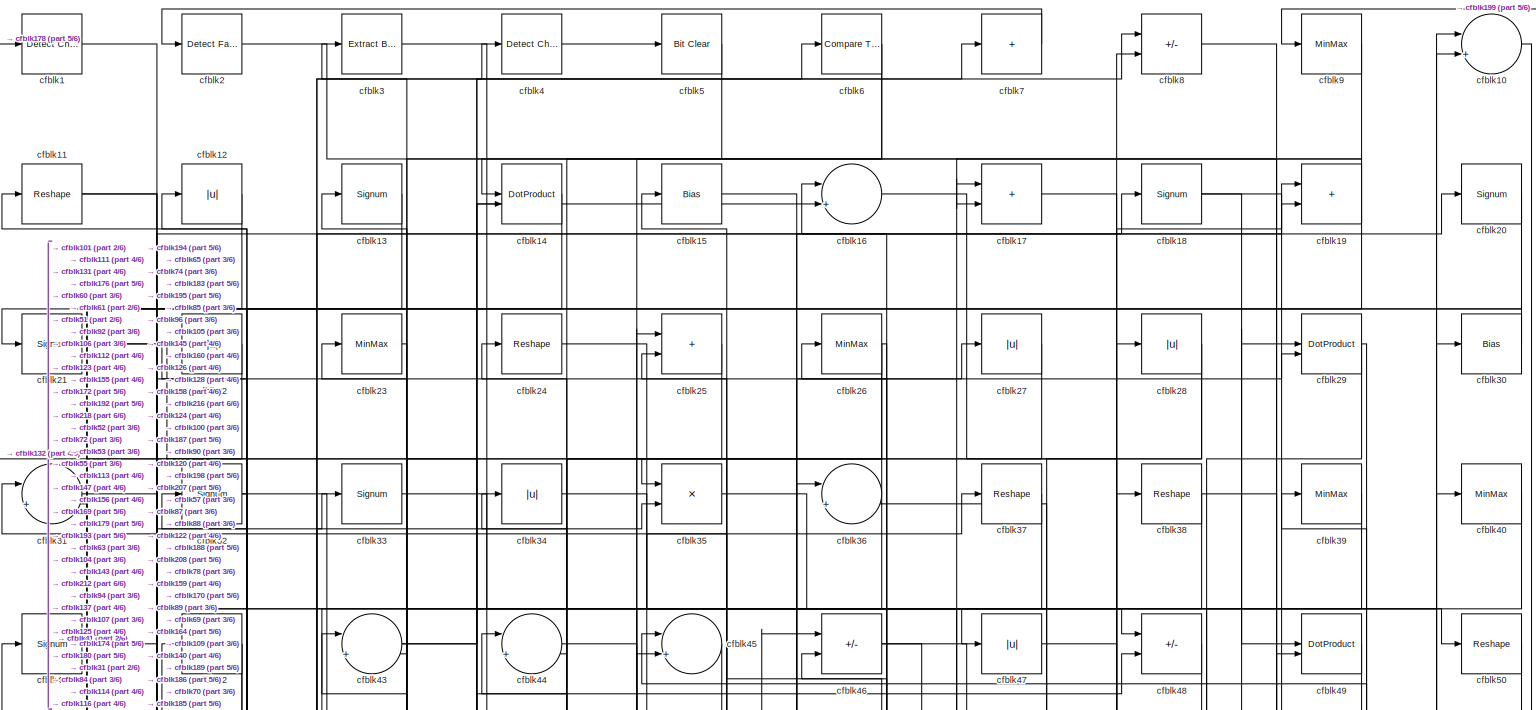
[diagram: root canvas - part 1/6, full width, top band]
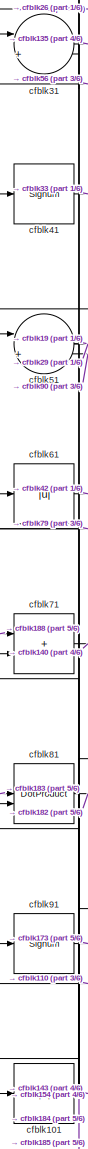
[diagram: root canvas - part 2/6, top left region]
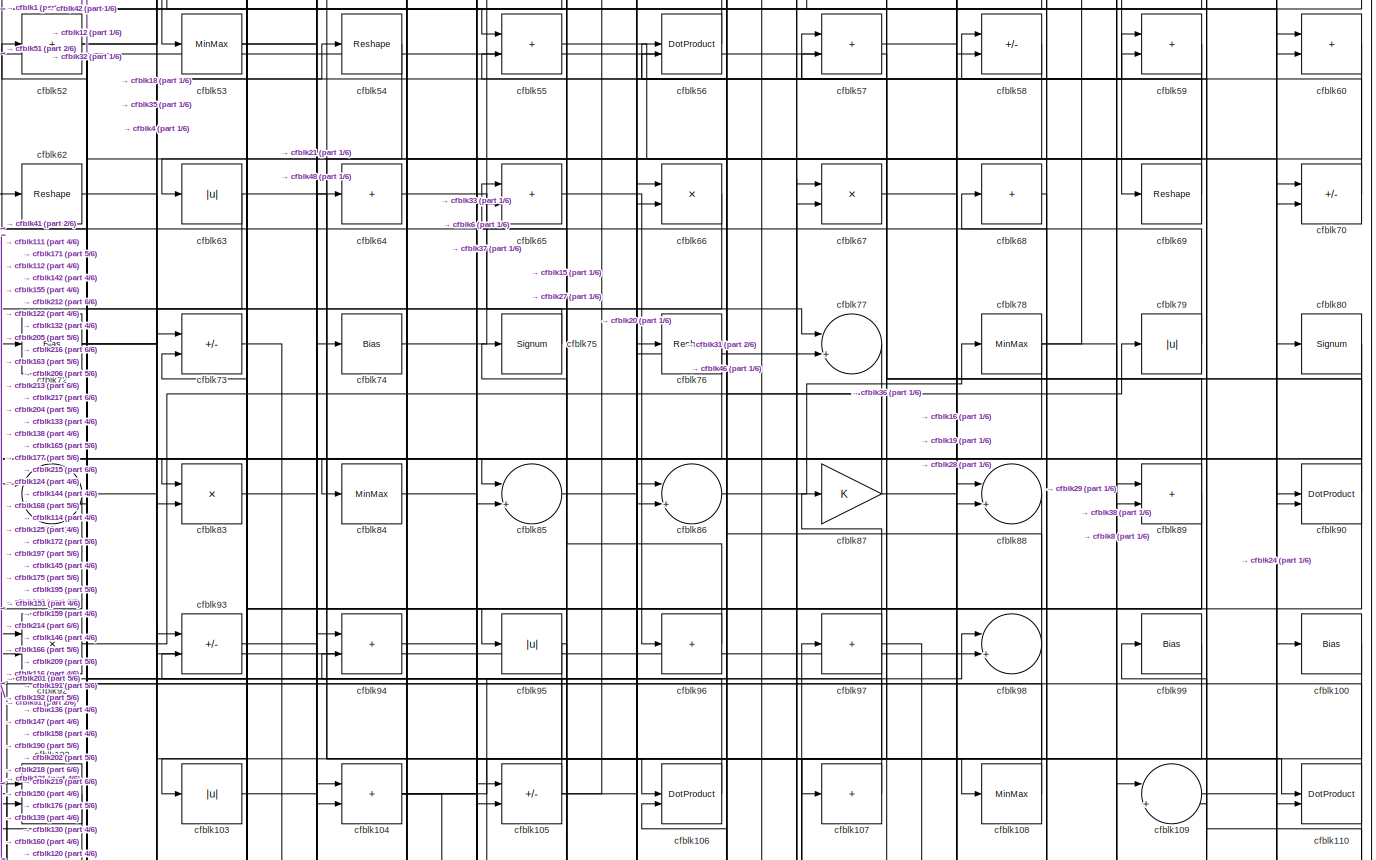
[diagram: root canvas - part 3/6, full width, middle band]
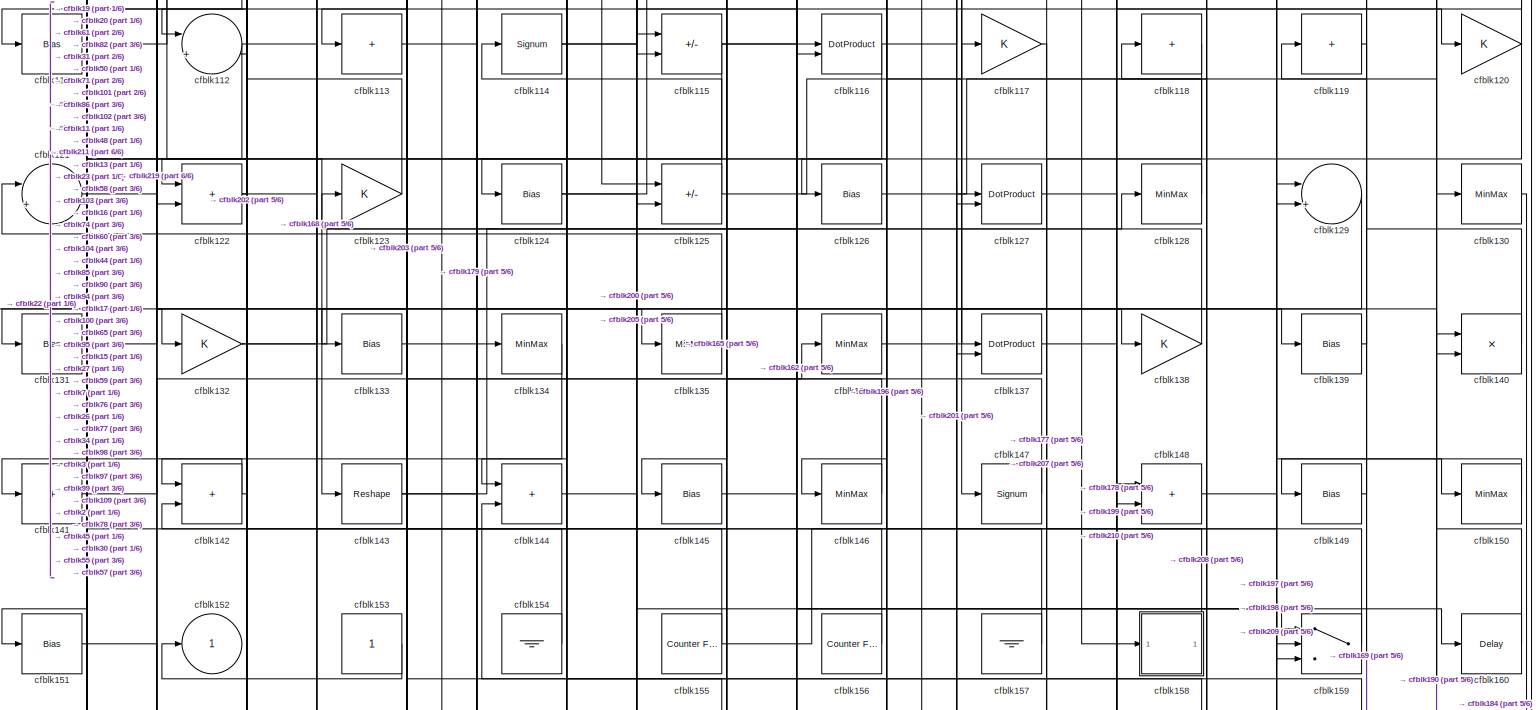
[diagram: root canvas - part 4/6, full width, middle band]
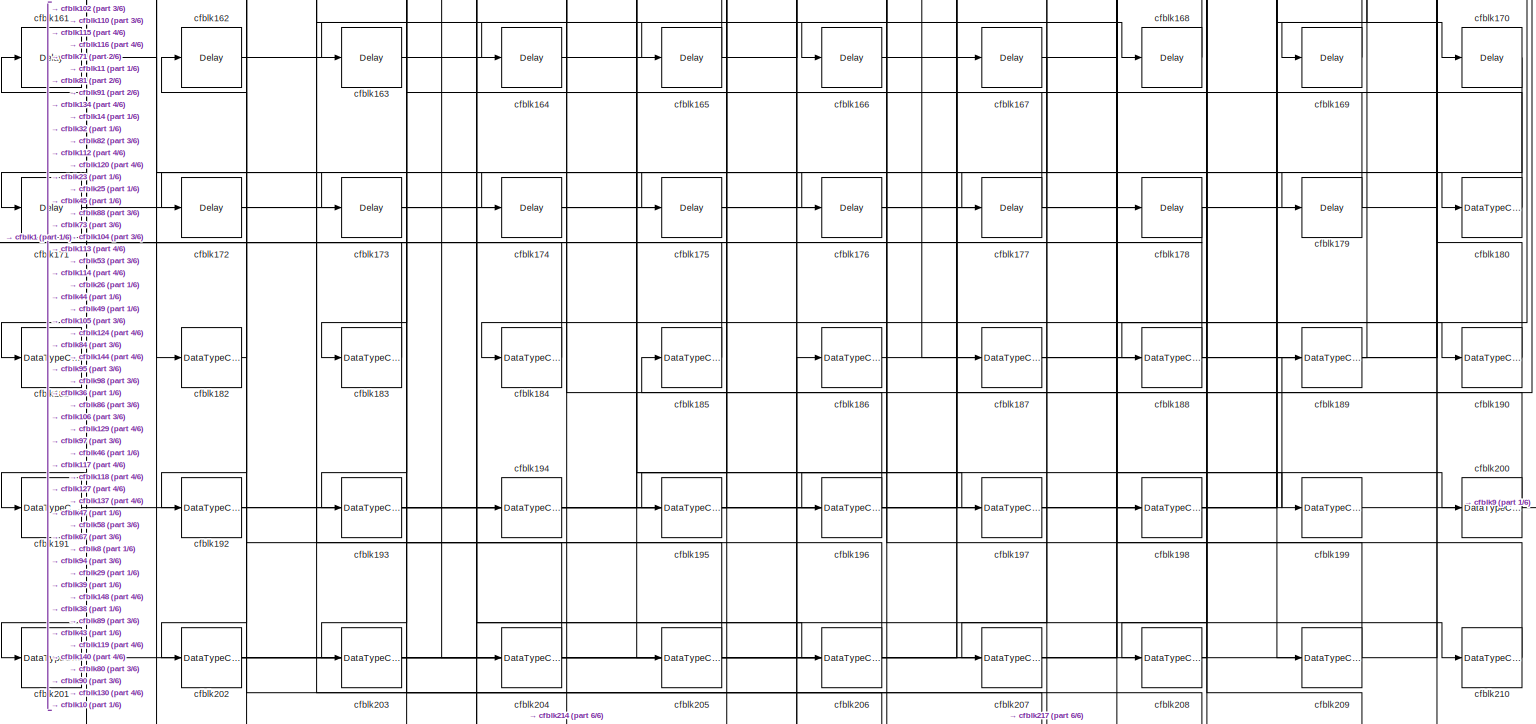
[diagram: root canvas - part 5/6, full width, bottom band]
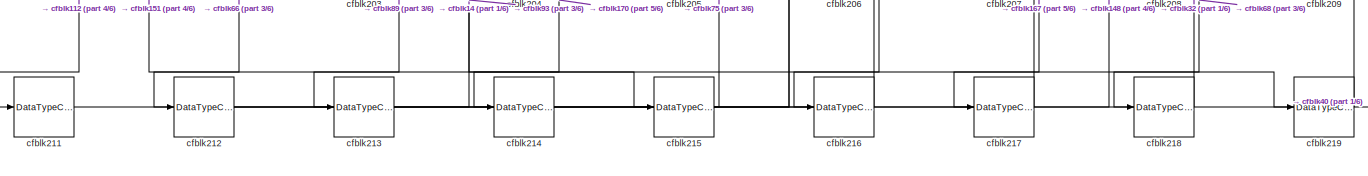
[diagram: root canvas - part 6/6, full width, bottom band]
MODEL slx_e019bd5b1b93
KIND model
CONFIG AbsTol = auto
CONFIG EnableMultiTasking = off
CONFIG FixedStep = auto
CONFIG MaxStep = auto
CONFIG MinStep = auto
CONFIG RelTol = 1e-3
CONFIG SampleTimeConstraint = Unconstrained
CONFIG SolverName = VariableStepAuto
CONFIG StartTime = 0.0
CONFIG StopTime = 10.0
BLOCK [Reference] cfblk1  REF=simulink/Logic and Bit
Operations/Detect
Change
  LibrarySourceBlock = hdlsllib/Logic and Bit\nOperations/Detect\nChange
  SourceBlock = simulink/Logic and Bit\nOperations/Detect\nChange
  SourceType = Detect Change
BLOCK [Sum] cfblk10
  Inputs = |++
BLOCK [Bias] cfblk100
  Bias = 0.0
  SaturateOnIntegerOverflow = off
BLOCK [Abs] cfblk101
  SaturateOnIntegerOverflow = off
BLOCK [Product] cfblk102
  Inputs = */
  RndMeth = Zero
  SaturateOnIntegerOverflow = on
BLOCK [Abs] cfblk103
  SaturateOnIntegerOverflow = off
BLOCK [Sum] cfblk104
  IconShape = rectangular
BLOCK [Sum] cfblk105
  IconShape = rectangular
  Inputs = +-
BLOCK [DotProduct] cfblk106
  OutDataTypeStr = Inherit: Inherit via internal rule
BLOCK [Sum] cfblk107
  IconShape = rectangular
  Inputs = +
BLOCK [MinMax] cfblk108
BLOCK [Sum] cfblk109
  Inputs = |++
BLOCK [Reshape] cfblk11
BLOCK [DotProduct] cfblk110
  OutDataTypeStr = Inherit: Inherit via internal rule
BLOCK [Bias] cfblk111
  Bias = 0.0
  SaturateOnIntegerOverflow = off
BLOCK [Sum] cfblk112
  Inputs = |++
BLOCK [Sum] cfblk113
  IconShape = rectangular
  Inputs = +
BLOCK [Signum] cfblk114
BLOCK [Sum] cfblk115
  IconShape = rectangular
  Inputs = +-
BLOCK [DotProduct] cfblk116
  OutDataTypeStr = Inherit: Inherit via internal rule
BLOCK [Gain] cfblk117
BLOCK [Sum] cfblk118
  IconShape = rectangular
  Inputs = +
BLOCK [Sum] cfblk119
  IconShape = rectangular
  Inputs = +
BLOCK [Abs] cfblk12
  SaturateOnIntegerOverflow = off
BLOCK [Gain] cfblk120
BLOCK [Sum] cfblk121
  Inputs = |++
BLOCK [Sum] cfblk122
  IconShape = rectangular
BLOCK [Gain] cfblk123
BLOCK [Bias] cfblk124
  Bias = 0.0
  SaturateOnIntegerOverflow = off
BLOCK [Sum] cfblk125
  IconShape = rectangular
  Inputs = +-
BLOCK [Bias] cfblk126
  Bias = 0.0
  SaturateOnIntegerOverflow = off
BLOCK [DotProduct] cfblk127
  OutDataTypeStr = Inherit: Inherit via internal rule
BLOCK [MinMax] cfblk128
BLOCK [Sum] cfblk129
  Inputs = |++
BLOCK [Signum] cfblk13
BLOCK [MinMax] cfblk130
BLOCK [Bias] cfblk131
  Bias = 0.0
  SaturateOnIntegerOverflow = off
BLOCK [Gain] cfblk132
BLOCK [Bias] cfblk133
  Bias = 0.0
  SaturateOnIntegerOverflow = off
BLOCK [MinMax] cfblk134
BLOCK [MinMax] cfblk135
BLOCK [MinMax] cfblk136
BLOCK [DotProduct] cfblk137
  OutDataTypeStr = Inherit: Inherit via internal rule
BLOCK [Gain] cfblk138
BLOCK [Bias] cfblk139
  Bias = 0.0
  SaturateOnIntegerOverflow = off
BLOCK [DotProduct] cfblk14
  OutDataTypeStr = Inherit: Inherit via internal rule
BLOCK [Product] cfblk140
  Inputs = */
  RndMeth = Zero
  SaturateOnIntegerOverflow = on
BLOCK [Sum] cfblk141
  IconShape = rectangular
  Inputs = +
BLOCK [Sum] cfblk142
  IconShape = rectangular
BLOCK [Reshape] cfblk143
BLOCK [Sum] cfblk144
  IconShape = rectangular
BLOCK [Bias] cfblk145
  Bias = 0.0
  SaturateOnIntegerOverflow = off
BLOCK [MinMax] cfblk146
BLOCK [Signum] cfblk147
BLOCK [Sum] cfblk148
  IconShape = rectangular
BLOCK [Bias] cfblk149
  Bias = 0.0
  SaturateOnIntegerOverflow = off
BLOCK [Bias] cfblk15
  Bias = 0.0
  SaturateOnIntegerOverflow = off
BLOCK [MinMax] cfblk150
BLOCK [Bias] cfblk151
  Bias = 0.0
  SaturateOnIntegerOverflow = off
BLOCK [Outport] cfblk152
  VectorParamsAs1DForOutWhenUnconnected = off
BLOCK [Constant] cfblk153
  SampleTime = -1
BLOCK [Ground] cfblk154
BLOCK [Reference] cfblk155  REF=hdlsllib/Sources/Counter
Free-Running
  SourceBlock = hdlsllib/Sources/Counter\nFree-Running
  SourceType = Counter Free-Running
BLOCK [Reference] cfblk156  REF=hdlsllib/Sources/Counter
Free-Running
  SourceBlock = hdlsllib/Sources/Counter\nFree-Running
  SourceType = Counter Free-Running
BLOCK [Ground] cfblk157
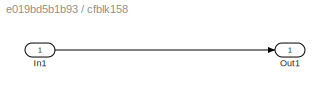
BLOCK [SubSystem] cfblk158
  LibrarySourceBlock = hdlsllib/Ports &\nSubsystems/Subsystem
BLOCK [Inport] cfblk158/In1
BLOCK [Outport] cfblk158/Out1
BLOCK [Switch] cfblk159
  InputSameDT = off
  SaturateOnIntegerOverflow = off
BLOCK [Sum] cfblk16
  Inputs = |++
BLOCK [Delay] cfblk160
  InputPortMap = u0
  SampleTime = 1
BLOCK [Delay] cfblk161
  InputPortMap = u0
  SampleTime = 1
BLOCK [Delay] cfblk162
  InputPortMap = u0
  SampleTime = 1
BLOCK [Delay] cfblk163
  InputPortMap = u0
  SampleTime = 1
BLOCK [Delay] cfblk164
  InputPortMap = u0
  SampleTime = 1
BLOCK [Delay] cfblk165
  InputPortMap = u0
  SampleTime = 1
BLOCK [Delay] cfblk166
  InputPortMap = u0
  SampleTime = 1
BLOCK [Delay] cfblk167
  InputPortMap = u0
  SampleTime = 1
BLOCK [Delay] cfblk168
  InputPortMap = u0
  SampleTime = 1
BLOCK [Delay] cfblk169
  InputPortMap = u0
  SampleTime = 1
BLOCK [Sum] cfblk17
  IconShape = rectangular
BLOCK [Delay] cfblk170
  InputPortMap = u0
  SampleTime = 1
BLOCK [Delay] cfblk171
  InputPortMap = u0
  SampleTime = 1
BLOCK [Delay] cfblk172
  InputPortMap = u0
  SampleTime = 1
BLOCK [Delay] cfblk173
  InputPortMap = u0
  SampleTime = 1
BLOCK [Delay] cfblk174
  InputPortMap = u0
  SampleTime = 1
BLOCK [Delay] cfblk175
  InputPortMap = u0
  SampleTime = 1
BLOCK [Delay] cfblk176
  InputPortMap = u0
  SampleTime = 1
BLOCK [Delay] cfblk177
  InputPortMap = u0
  SampleTime = 1
BLOCK [Delay] cfblk178
  InputPortMap = u0
  SampleTime = 1
BLOCK [Delay] cfblk179
  InputPortMap = u0
  SampleTime = 1
BLOCK [Signum] cfblk18
BLOCK [DataTypeConversion] cfblk180
  OutDataTypeStr = uint8
  RndMeth = Floor
  SaturateOnIntegerOverflow = off
BLOCK [DataTypeConversion] cfblk181
  OutDataTypeStr = uint8
  RndMeth = Floor
  SaturateOnIntegerOverflow = off
BLOCK [DataTypeConversion] cfblk182
  OutDataTypeStr = uint8
  RndMeth = Floor
  SaturateOnIntegerOverflow = off
BLOCK [DataTypeConversion] cfblk183
  OutDataTypeStr = uint8
  RndMeth = Floor
  SaturateOnIntegerOverflow = off
BLOCK [DataTypeConversion] cfblk184
  OutDataTypeStr = uint8
  RndMeth = Floor
  SaturateOnIntegerOverflow = off
BLOCK [DataTypeConversion] cfblk185
  OutDataTypeStr = uint8
  RndMeth = Floor
  SaturateOnIntegerOverflow = off
BLOCK [DataTypeConversion] cfblk186
  OutDataTypeStr = uint8
  RndMeth = Floor
  SaturateOnIntegerOverflow = off
BLOCK [DataTypeConversion] cfblk187
  OutDataTypeStr = uint8
  RndMeth = Floor
  SaturateOnIntegerOverflow = off
BLOCK [DataTypeConversion] cfblk188
  OutDataTypeStr = uint8
  RndMeth = Floor
  SaturateOnIntegerOverflow = off
BLOCK [DataTypeConversion] cfblk189
  OutDataTypeStr = uint8
  RndMeth = Floor
  SaturateOnIntegerOverflow = off
BLOCK [Sum] cfblk19
  IconShape = rectangular
BLOCK [DataTypeConversion] cfblk190
  OutDataTypeStr = uint8
  RndMeth = Floor
  SaturateOnIntegerOverflow = off
BLOCK [DataTypeConversion] cfblk191
  OutDataTypeStr = uint8
  RndMeth = Floor
  SaturateOnIntegerOverflow = off
BLOCK [DataTypeConversion] cfblk192
  OutDataTypeStr = uint8
  RndMeth = Floor
  SaturateOnIntegerOverflow = off
BLOCK [DataTypeConversion] cfblk193
  RndMeth = Floor
  SaturateOnIntegerOverflow = off
BLOCK [DataTypeConversion] cfblk194
  OutDataTypeStr = uint8
  RndMeth = Floor
  SaturateOnIntegerOverflow = off
BLOCK [DataTypeConversion] cfblk195
  OutDataTypeStr = uint8
  RndMeth = Floor
  SaturateOnIntegerOverflow = off
BLOCK [DataTypeConversion] cfblk196
  OutDataTypeStr = uint8
  RndMeth = Floor
  SaturateOnIntegerOverflow = off
BLOCK [DataTypeConversion] cfblk197
  OutDataTypeStr = uint8
  RndMeth = Floor
  SaturateOnIntegerOverflow = off
BLOCK [DataTypeConversion] cfblk198
  OutDataTypeStr = uint8
  RndMeth = Floor
  SaturateOnIntegerOverflow = off
BLOCK [DataTypeConversion] cfblk199
  OutDataTypeStr = uint8
  RndMeth = Floor
  SaturateOnIntegerOverflow = off
BLOCK [Reference] cfblk2  REF=hdlsllib/Logic and Bit
Operations/Detect Fall
Nonpositive
  SourceBlock = hdlsllib/Logic and Bit\nOperations/Detect Fall\nNonpositive
  SourceType = Detect Fall Nonpositive
BLOCK [Signum] cfblk20
BLOCK [DataTypeConversion] cfblk200
  OutDataTypeStr = uint8
  RndMeth = Floor
  SaturateOnIntegerOverflow = off
BLOCK [DataTypeConversion] cfblk201
  OutDataTypeStr = uint8
  RndMeth = Floor
  SaturateOnIntegerOverflow = off
BLOCK [DataTypeConversion] cfblk202
  RndMeth = Floor
  SaturateOnIntegerOverflow = off
BLOCK [DataTypeConversion] cfblk203
  OutDataTypeStr = uint8
  RndMeth = Floor
  SaturateOnIntegerOverflow = off
BLOCK [DataTypeConversion] cfblk204
  RndMeth = Floor
  SaturateOnIntegerOverflow = off
BLOCK [DataTypeConversion] cfblk205
  OutDataTypeStr = uint8
  RndMeth = Floor
  SaturateOnIntegerOverflow = off
BLOCK [DataTypeConversion] cfblk206
  OutDataTypeStr = uint8
  RndMeth = Floor
  SaturateOnIntegerOverflow = off
BLOCK [DataTypeConversion] cfblk207
  OutDataTypeStr = uint8
  RndMeth = Floor
  SaturateOnIntegerOverflow = off
BLOCK [DataTypeConversion] cfblk208
  OutDataTypeStr = uint8
  RndMeth = Floor
  SaturateOnIntegerOverflow = off
BLOCK [DataTypeConversion] cfblk209
  OutDataTypeStr = uint8
  RndMeth = Floor
  SaturateOnIntegerOverflow = off
BLOCK [Signum] cfblk21
BLOCK [DataTypeConversion] cfblk210
  OutDataTypeStr = uint8
  RndMeth = Floor
  SaturateOnIntegerOverflow = off
BLOCK [DataTypeConversion] cfblk211
  OutDataTypeStr = uint8
  RndMeth = Floor
  SaturateOnIntegerOverflow = off
BLOCK [DataTypeConversion] cfblk212
  RndMeth = Floor
  SaturateOnIntegerOverflow = off
BLOCK [DataTypeConversion] cfblk213
  OutDataTypeStr = uint8
  RndMeth = Floor
  SaturateOnIntegerOverflow = off
BLOCK [DataTypeConversion] cfblk214
  OutDataTypeStr = uint8
  RndMeth = Floor
  SaturateOnIntegerOverflow = off
BLOCK [DataTypeConversion] cfblk215
  OutDataTypeStr = uint8
  RndMeth = Floor
  SaturateOnIntegerOverflow = off
BLOCK [DataTypeConversion] cfblk216
  OutDataTypeStr = uint8
  RndMeth = Floor
  SaturateOnIntegerOverflow = off
BLOCK [DataTypeConversion] cfblk217
  OutDataTypeStr = uint8
  RndMeth = Floor
  SaturateOnIntegerOverflow = off
BLOCK [DataTypeConversion] cfblk218
  OutDataTypeStr = uint8
  RndMeth = Floor
  SaturateOnIntegerOverflow = off
BLOCK [DataTypeConversion] cfblk219
  OutDataTypeStr = uint8
  RndMeth = Floor
  SaturateOnIntegerOverflow = off
BLOCK [Abs] cfblk22
  SaturateOnIntegerOverflow = off
BLOCK [MinMax] cfblk23
BLOCK [Reshape] cfblk24
BLOCK [Sum] cfblk25
  IconShape = rectangular
BLOCK [MinMax] cfblk26
BLOCK [Abs] cfblk27
  SaturateOnIntegerOverflow = off
BLOCK [Abs] cfblk28
  SaturateOnIntegerOverflow = off
BLOCK [DotProduct] cfblk29
  OutDataTypeStr = Inherit: Inherit via internal rule
BLOCK [Reference] cfblk3  REF=simulink/Logic and Bit
Operations/Extract Bits
  LibrarySourceBlock = hdlsllib/Logic and Bit\nOperations/Extract Bits
  SourceBlock = simulink/Logic and Bit\nOperations/Extract Bits
  SourceType = Extract Bits
BLOCK [Bias] cfblk30
  Bias = 0.0
  SaturateOnIntegerOverflow = off
BLOCK [Sum] cfblk31
  Inputs = |++
BLOCK [Signum] cfblk32
BLOCK [Signum] cfblk33
BLOCK [Abs] cfblk34
  SaturateOnIntegerOverflow = off
BLOCK [Product] cfblk35
  Inputs = */
  RndMeth = Zero
  SaturateOnIntegerOverflow = on
BLOCK [Sum] cfblk36
  Inputs = |++
BLOCK [Reshape] cfblk37
BLOCK [Reshape] cfblk38
BLOCK [MinMax] cfblk39
BLOCK [Reference] cfblk4  REF=simulink/Logic and Bit
Operations/Detect
Change
  LibrarySourceBlock = hdlsllib/Logic and Bit\nOperations/Detect\nChange
  SourceBlock = simulink/Logic and Bit\nOperations/Detect\nChange
  SourceType = Detect Change
BLOCK [MinMax] cfblk40
BLOCK [Signum] cfblk41
BLOCK [MinMax] cfblk42
BLOCK [Sum] cfblk43
  Inputs = |++
BLOCK [Sum] cfblk44
  Inputs = |++
BLOCK [Sum] cfblk45
  Inputs = |++
BLOCK [Sum] cfblk46
  IconShape = rectangular
  Inputs = +-
BLOCK [Abs] cfblk47
  SaturateOnIntegerOverflow = off
BLOCK [Sum] cfblk48
  IconShape = rectangular
  Inputs = +-
BLOCK [DotProduct] cfblk49
  OutDataTypeStr = Inherit: Inherit via internal rule
BLOCK [Reference] cfblk5  REF=simulink/Logic and Bit
Operations/Bit Clear
  LibrarySourceBlock = hdlsllib/Logic and Bit\nOperations/Bit Clear
  SourceBlock = simulink/Logic and Bit\nOperations/Bit Clear
  SourceType = Bit Clear
BLOCK [Reshape] cfblk50
BLOCK [Sum] cfblk51
  Inputs = |++
BLOCK [Sum] cfblk52
  IconShape = rectangular
  Inputs = +
BLOCK [MinMax] cfblk53
BLOCK [Reshape] cfblk54
BLOCK [Sum] cfblk55
  IconShape = rectangular
BLOCK [DotProduct] cfblk56
  OutDataTypeStr = Inherit: Inherit via internal rule
BLOCK [Sum] cfblk57
  IconShape = rectangular
BLOCK [Sum] cfblk58
  IconShape = rectangular
  Inputs = +-
BLOCK [Sum] cfblk59
  IconShape = rectangular
BLOCK [Reference] cfblk6  REF=hdlsllib/Logic and Bit
Operations/Compare
To Zero
  SourceBlock = hdlsllib/Logic and Bit\nOperations/Compare\nTo Zero
  SourceType = Compare To Zero
BLOCK [Sum] cfblk60
  IconShape = rectangular
BLOCK [Abs] cfblk61
  SaturateOnIntegerOverflow = off
BLOCK [Reshape] cfblk62
BLOCK [Abs] cfblk63
  SaturateOnIntegerOverflow = off
BLOCK [Sum] cfblk64
  IconShape = rectangular
  Inputs = +
BLOCK [Sum] cfblk65
  IconShape = rectangular
BLOCK [Product] cfblk66
  Inputs = */
  RndMeth = Zero
  SaturateOnIntegerOverflow = on
BLOCK [Product] cfblk67
  Inputs = */
  RndMeth = Zero
  SaturateOnIntegerOverflow = on
BLOCK [Sum] cfblk68
  IconShape = rectangular
  Inputs = +
BLOCK [Reshape] cfblk69
BLOCK [Sum] cfblk7
  IconShape = rectangular
  Inputs = +
BLOCK [Sum] cfblk70
  IconShape = rectangular
  Inputs = +-
BLOCK [Sum] cfblk71
  IconShape = rectangular
BLOCK [Bias] cfblk72
  Bias = 0.0
  SaturateOnIntegerOverflow = off
BLOCK [Sum] cfblk73
  IconShape = rectangular
  Inputs = +-
BLOCK [Bias] cfblk74
  Bias = 0.0
  SaturateOnIntegerOverflow = off
BLOCK [Signum] cfblk75
BLOCK [Reshape] cfblk76
BLOCK [Sum] cfblk77
  Inputs = |++
BLOCK [MinMax] cfblk78
BLOCK [Abs] cfblk79
  SaturateOnIntegerOverflow = off
BLOCK [Sum] cfblk8
  IconShape = rectangular
  Inputs = +-
BLOCK [Signum] cfblk80
BLOCK [DotProduct] cfblk81
  OutDataTypeStr = Inherit: Inherit via internal rule
BLOCK [Sum] cfblk82
  Inputs = |++
BLOCK [Product] cfblk83
  Inputs = */
  RndMeth = Zero
  SaturateOnIntegerOverflow = on
BLOCK [MinMax] cfblk84
BLOCK [Sum] cfblk85
  Inputs = |++
BLOCK [Sum] cfblk86
  Inputs = |++
BLOCK [Gain] cfblk87
BLOCK [Sum] cfblk88
  Inputs = |++
BLOCK [Sum] cfblk89
  IconShape = rectangular
BLOCK [MinMax] cfblk9
BLOCK [DotProduct] cfblk90
  OutDataTypeStr = Inherit: Inherit via internal rule
BLOCK [Signum] cfblk91
BLOCK [Product] cfblk92
  Inputs = */
  RndMeth = Zero
  SaturateOnIntegerOverflow = on
BLOCK [Sum] cfblk93
  IconShape = rectangular
  Inputs = +-
BLOCK [Sum] cfblk94
  IconShape = rectangular
BLOCK [Abs] cfblk95
  SaturateOnIntegerOverflow = off
BLOCK [Sum] cfblk96
  IconShape = rectangular
  Inputs = +
BLOCK [Sum] cfblk97
  IconShape = rectangular
  Inputs = +
BLOCK [Sum] cfblk98
  Inputs = |++
BLOCK [Bias] cfblk99
  Bias = 0.0
  SaturateOnIntegerOverflow = off
LINE cfblk100:1 -> cfblk145:1
LINE cfblk101:1 -> cfblk143:1
LINE cfblk102:1 -> cfblk171:1
LINE cfblk103:1 -> cfblk138:1
NET cfblk104:1 -> cfblk108:1, cfblk110:2, cfblk125:1, cfblk159:3
NET cfblk105:1 -> cfblk20:1, cfblk46:1, cfblk62:1
LINE cfblk106:1 -> cfblk12:1
LINE cfblk107:1 -> cfblk24:1
LINE cfblk108:1 -> cfblk52:1
LINE cfblk109:1 -> cfblk70:1
LINE cfblk10:1 -> cfblk185:1
NET cfblk110:1 -> cfblk201:1, cfblk91:1
LINE cfblk111:1 -> cfblk86:1
NET cfblk112:1 -> cfblk168:1, cfblk211:1
LINE cfblk113:1 -> cfblk179:1
NET cfblk114:1 -> cfblk45:2, cfblk85:2
NET cfblk115:1 -> cfblk191:1, cfblk59:2, cfblk77:2
NET cfblk116:1 -> cfblk181:1, cfblk98:1
LINE cfblk117:1 -> cfblk177:1
LINE cfblk118:1 -> cfblk207:1
LINE cfblk119:1 -> cfblk169:1
NET cfblk11:1 -> cfblk176:1, cfblk48:1
NET cfblk120:1 -> cfblk203:1, cfblk57:2
LINE cfblk121:1 -> cfblk102:1
NET cfblk122:1 -> cfblk142:1, cfblk54:1
LINE cfblk123:1 -> cfblk11:1
NET cfblk124:1 -> cfblk17:1, cfblk200:1
NET cfblk125:1 -> cfblk117:1, cfblk34:1
LINE cfblk126:1 -> cfblk30:1
LINE cfblk127:1 -> cfblk199:1
LINE cfblk128:1 -> cfblk16:1
LINE cfblk129:1 -> cfblk196:1
LINE cfblk12:1 -> cfblk101:1
LINE cfblk130:1 -> cfblk184:1
LINE cfblk131:1 -> cfblk139:1
NET cfblk132:1 -> cfblk76:1, cfblk7:1
LINE cfblk133:1 -> cfblk74:1
LINE cfblk134:1 -> cfblk202:1
LINE cfblk135:1 -> cfblk121:1
LINE cfblk136:1 -> cfblk97:1
LINE cfblk137:1 -> cfblk178:1
LINE cfblk138:1 -> cfblk123:1
LINE cfblk139:1 -> cfblk99:1
LINE cfblk13:1 -> cfblk112:2
LINE cfblk140:1 -> cfblk45:1
LINE cfblk141:1 -> cfblk136:1
NET cfblk142:1 -> cfblk102:2, cfblk141:1
NET cfblk143:1 -> cfblk128:1, cfblk16:2
LINE cfblk144:1 -> cfblk205:1
LINE cfblk145:1 -> cfblk27:1
LINE cfblk146:1 -> cfblk65:1
LINE cfblk147:1 -> cfblk3:1
LINE cfblk148:1 -> cfblk209:1
LINE cfblk149:1 -> cfblk119:1
LINE cfblk14:1 -> cfblk172:1
LINE cfblk150:1 -> cfblk149:1
LINE cfblk151:1 -> cfblk219:1
LINE cfblk153:1 -> cfblk152:1
LINE cfblk154:1 -> cfblk61:1
NET cfblk155:1 -> cfblk109:1, cfblk22:1
LINE cfblk156:1 -> cfblk13:1
LINE cfblk157:1 -> cfblk142:2
LINE cfblk158/In1:1 -> cfblk158/Out1:1
LINE cfblk158:1 -> cfblk26:1
LINE cfblk159:1 -> cfblk57:1
LINE cfblk15:1 -> cfblk160:1
LINE cfblk160:1 -> cfblk60:1
LINE cfblk161:1 -> cfblk180:1
LINE cfblk162:1 -> cfblk116:1
LINE cfblk163:1 -> cfblk194:1
LINE cfblk164:1 -> cfblk36:1
LINE cfblk165:1 -> cfblk144:2
LINE cfblk166:1 -> cfblk58:2
LINE cfblk167:1 -> cfblk217:1
LINE cfblk168:1 -> cfblk94:2
LINE cfblk169:1 -> cfblk43:1
LINE cfblk16:1 -> cfblk88:1
LINE cfblk170:1 -> cfblk214:1
LINE cfblk171:1 -> cfblk86:2
LINE cfblk172:1 -> cfblk105:1
LINE cfblk173:1 -> cfblk206:1
LINE cfblk174:1 -> cfblk8:2
LINE cfblk175:1 -> cfblk90:1
LINE cfblk176:1 -> cfblk89:2
LINE cfblk177:1 -> cfblk104:1
LINE cfblk178:1 -> cfblk1:1
LINE cfblk179:1 -> cfblk23:1
LINE cfblk17:1 -> cfblk120:1
LINE cfblk180:1 -> cfblk44:1
LINE cfblk181:1 -> cfblk161:1
LINE cfblk182:1 -> cfblk162:1
LINE cfblk183:1 -> cfblk81:1
LINE cfblk184:1 -> cfblk81:2
LINE cfblk185:1 -> cfblk71:2
LINE cfblk186:1 -> cfblk10:1
LINE cfblk187:1 -> cfblk10:2
LINE cfblk188:1 -> cfblk71:1
LINE cfblk189:1 -> cfblk39:1
NET cfblk18:1 -> cfblk49:1, cfblk69:1
LINE cfblk190:1 -> cfblk140:1
LINE cfblk191:1 -> cfblk67:1
LINE cfblk192:1 -> cfblk67:2
NET cfblk193:1 -> cfblk189:1, cfblk210:1, cfblk49:2
LINE cfblk194:1 -> cfblk25:1
LINE cfblk195:1 -> cfblk25:2
LINE cfblk196:1 -> cfblk114:1
LINE cfblk197:1 -> cfblk129:1
LINE cfblk198:1 -> cfblk129:2
LINE cfblk199:1 -> cfblk9:1
NET cfblk19:1 -> cfblk111:1, cfblk14:1
LINE cfblk1:1 -> cfblk60:2
LINE cfblk200:1 -> cfblk127:1
LINE cfblk201:1 -> cfblk127:2
NET cfblk202:1 -> cfblk167:1, cfblk186:1, cfblk88:2
LINE cfblk203:1 -> cfblk134:1
NET cfblk204:1 -> cfblk80:1, cfblk82:2
LINE cfblk205:1 -> cfblk73:1
LINE cfblk206:1 -> cfblk73:2
LINE cfblk207:1 -> cfblk38:1
LINE cfblk208:1 -> cfblk118:1
LINE cfblk209:1 -> cfblk106:2
LINE cfblk20:1 -> cfblk131:1
LINE cfblk210:1 -> cfblk148:1
LINE cfblk211:1 -> cfblk148:2
NET cfblk212:1 -> cfblk14:2, cfblk40:1
LINE cfblk213:1 -> cfblk66:1
LINE cfblk214:1 -> cfblk66:2
LINE cfblk215:1 -> cfblk75:1
LINE cfblk216:1 -> cfblk93:1
LINE cfblk217:1 -> cfblk93:2
LINE cfblk218:1 -> cfblk32:1
LINE cfblk219:1 -> cfblk68:1
NET cfblk21:1 -> cfblk47:1, cfblk94:1
LINE cfblk22:1 -> cfblk132:1
LINE cfblk23:1 -> cfblk113:1
LINE cfblk24:1 -> cfblk70:2
LINE cfblk25:1 -> cfblk193:1
NET cfblk26:1 -> cfblk126:1, cfblk174:1, cfblk31:2
LINE cfblk27:1 -> cfblk85:1
NET cfblk28:1 -> cfblk107:1, cfblk84:1
NET cfblk29:1 -> cfblk109:2, cfblk208:1
LINE cfblk2:1 -> cfblk159:2
LINE cfblk30:1 -> cfblk21:1
LINE cfblk31:1 -> cfblk135:1
NET cfblk32:1 -> cfblk192:1, cfblk55:1
LINE cfblk33:1 -> cfblk105:2
LINE cfblk34:1 -> cfblk137:2
LINE cfblk35:1 -> cfblk50:1
NET cfblk36:1 -> cfblk104:2, cfblk35:1
LINE cfblk37:1 -> cfblk53:1
NET cfblk38:1 -> cfblk170:1, cfblk63:1
LINE cfblk39:1 -> cfblk188:1
LINE cfblk3:1 -> cfblk137:1
LINE cfblk40:1 -> cfblk216:1
LINE cfblk41:1 -> cfblk33:1
NET cfblk42:1 -> cfblk51:1, cfblk92:2
NET cfblk43:1 -> cfblk6:1, cfblk8:1
LINE cfblk44:1 -> cfblk116:2
LINE cfblk45:1 -> cfblk183:1
NET cfblk46:1 -> cfblk100:1, cfblk187:1
LINE cfblk47:1 -> cfblk198:1
LINE cfblk48:1 -> cfblk122:1
LINE cfblk49:1 -> cfblk164:1
LINE cfblk4:1 -> cfblk5:1
LINE cfblk50:1 -> cfblk122:2
NET cfblk51:1 -> cfblk19:2, cfblk29:2
NET cfblk52:1 -> cfblk35:2, cfblk4:1
NET cfblk53:1 -> cfblk165:1, cfblk48:2
LINE cfblk54:1 -> cfblk95:1
LINE cfblk55:1 -> cfblk130:1
LINE cfblk56:1 -> cfblk31:1
LINE cfblk57:1 -> cfblk19:1
LINE cfblk58:1 -> cfblk133:1
NET cfblk59:1 -> cfblk124:1, cfblk82:1
LINE cfblk5:1 -> cfblk43:2
LINE cfblk60:1 -> cfblk144:1
LINE cfblk61:1 -> cfblk42:1
LINE cfblk62:1 -> cfblk90:2
NET cfblk63:1 -> cfblk106:1, cfblk83:2
LINE cfblk64:1 -> cfblk77:1
LINE cfblk65:1 -> cfblk96:1
LINE cfblk66:1 -> cfblk212:1
LINE cfblk67:1 -> cfblk190:1
LINE cfblk68:1 -> cfblk218:1
LINE cfblk69:1 -> cfblk58:1
NET cfblk6:1 -> cfblk44:2, cfblk65:2
LINE cfblk70:1 -> cfblk56:1
LINE cfblk71:1 -> cfblk140:2
NET cfblk72:1 -> cfblk18:1, cfblk59:1, cfblk98:2
LINE cfblk73:1 -> cfblk204:1
LINE cfblk74:1 -> cfblk37:1
LINE cfblk75:1 -> cfblk72:1
LINE cfblk76:1 -> cfblk121:2
LINE cfblk77:1 -> cfblk146:1
NET cfblk78:1 -> cfblk112:1, cfblk150:1, cfblk29:1
LINE cfblk79:1 -> cfblk41:1
LINE cfblk7:1 -> cfblk2:1
NET cfblk80:1 -> cfblk83:1, cfblk92:1
LINE cfblk81:1 -> cfblk182:1
NET cfblk82:1 -> cfblk110:1, cfblk151:1
LINE cfblk83:1 -> cfblk64:1
LINE cfblk84:1 -> cfblk197:1
LINE cfblk85:1 -> cfblk159:1
LINE cfblk86:1 -> cfblk78:1
NET cfblk87:1 -> cfblk28:1, cfblk46:2
LINE cfblk88:1 -> cfblk163:1
NET cfblk89:1 -> cfblk103:1, cfblk213:1, cfblk56:2
LINE cfblk8:1 -> cfblk89:1
NET cfblk90:1 -> cfblk125:2, cfblk36:2, cfblk51:2
LINE cfblk91:1 -> cfblk173:1
LINE cfblk92:1 -> cfblk79:1
LINE cfblk93:1 -> cfblk215:1
LINE cfblk94:1 -> cfblk115:1
NET cfblk95:1 -> cfblk115:2, cfblk175:1
LINE cfblk96:1 -> cfblk15:1
NET cfblk97:1 -> cfblk158:1, cfblk166:1, cfblk87:1
NET cfblk98:1 -> cfblk195:1, cfblk55:2
LINE cfblk99:1 -> cfblk147:1
LINE cfblk9:1 -> cfblk17:2
note: NET lines group one-source signal fan-out (src -> all destinations, sorted); 1:1 wires keep LINE
